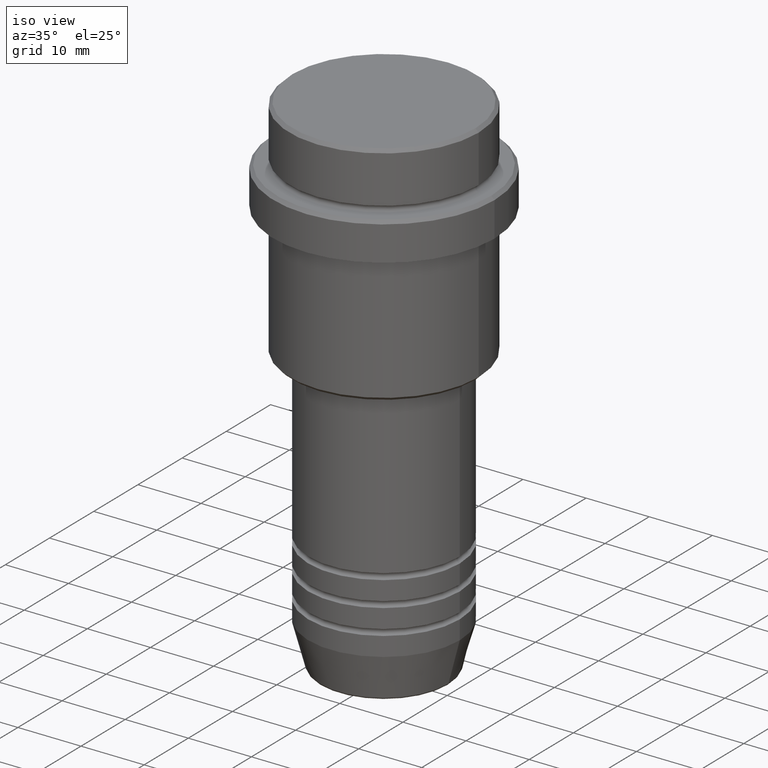
[diagram: clean part render]
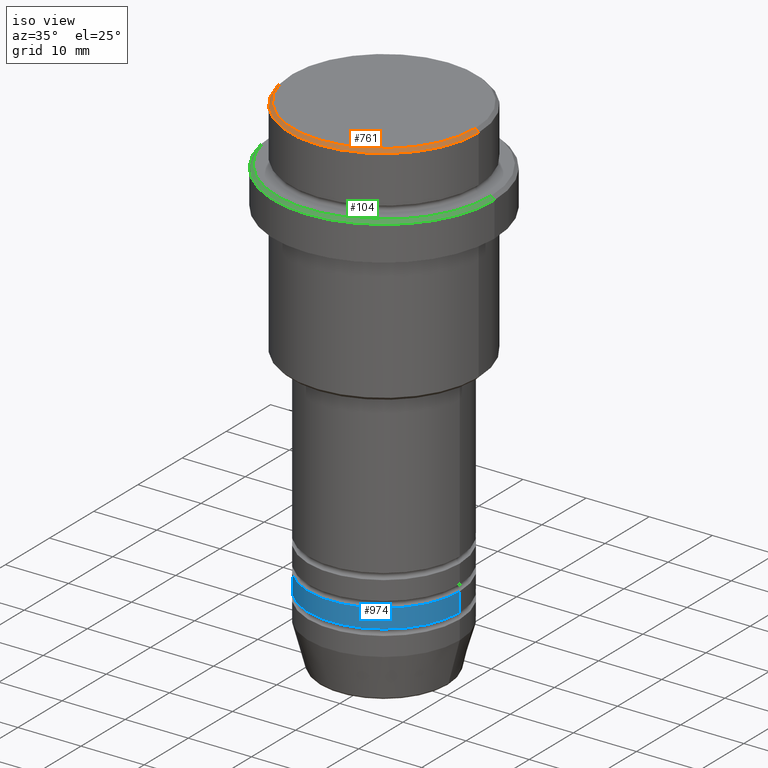
[diagram: same view with three faces highlighted in distinct colors, each labeled with its STEP entity id]
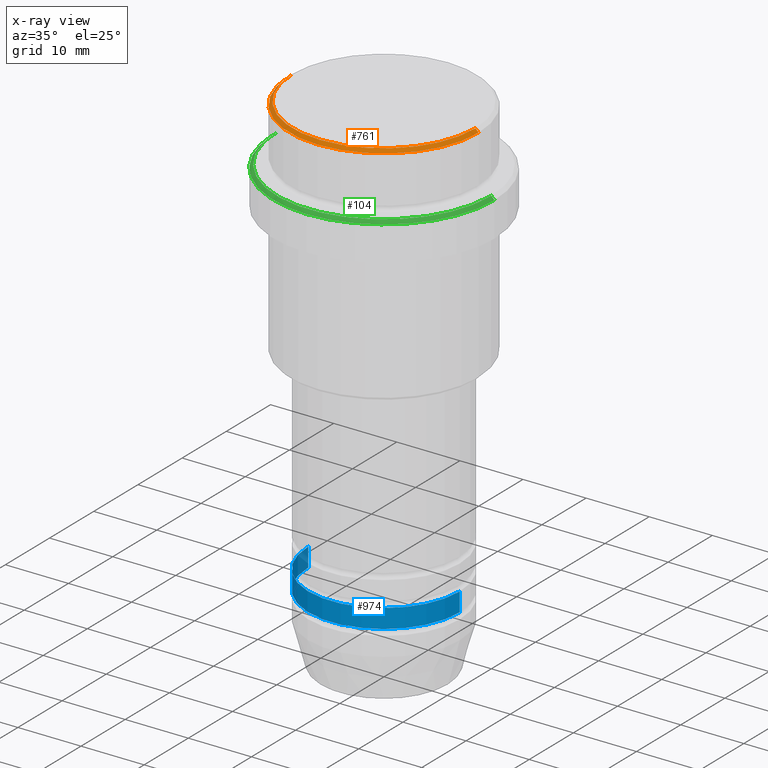
[diagram: x-ray of the same camera — body ghosted, the three highlighted faces saturated]
A machine part, iso view with three faces highlighted in distinct colors.
The next image is the same camera in x-ray (body ghosted, the three faces saturated) — at least one of them is partly hidden behind the body in this view.
Their STEP definitions:

[orange] entity #761 — the highlighted conical surface has half-angle 45 deg.
#8 = ORIENTED_EDGE ( 'NONE', *, *, #1011, .F. ) ;
#11 = LINE ( 'NONE', #1300, #1053 ) ;
#66 = CIRCLE ( 'NONE', #530, 14.50000000000001066 ) ;
#76 = CARTESIAN_POINT ( 'NONE',  ( 0.000000000000000000, 0.000000000000000000, 0.000000000000000000 ) ) ;
#158 = EDGE_CURVE ( 'NONE', #527, #844, #994, .T. ) ;
#171 = CARTESIAN_POINT ( 'NONE',  ( 0.000000000000000000, 0.000000000000000000, -0.4999999999999970024 ) ) ;
#187 = FACE_OUTER_BOUND ( 'NONE', #633, .T. ) ;
#304 = DIRECTION ( 'NONE',  ( 0.000000000000000000, 0.000000000000000000, -1.000000000000000000 ) ) ;
#320 = CIRCLE ( 'NONE', #857, 15.00000000000000000 ) ;
#375 = ORIENTED_EDGE ( 'NONE', *, *, #499, .F. ) ;
#499 = EDGE_CURVE ( 'NONE', #1029, #527, #66, .T. ) ;
#527 = VERTEX_POINT ( 'NONE', #956 ) ;
#530 = AXIS2_PLACEMENT_3D ( 'NONE', #1113, #710, #947 ) ;
#559 = CARTESIAN_POINT ( 'NONE',  ( -15.00000000000000000, 1.836970198721029589E-15, -0.4999999999999970024 ) ) ;
#612 = CARTESIAN_POINT ( 'NONE',  ( -14.50000000000001066, 0.000000000000000000, 0.000000000000000000 ) ) ;
#627 = DIRECTION ( 'NONE',  ( 1.000000000000000000, 0.000000000000000000, 0.000000000000000000 ) ) ;
#633 = EDGE_LOOP ( 'NONE', ( #1043, #375, #921, #8 ) ) ;
#648 = CONICAL_SURFACE ( 'NONE', #1074, 14.50000000000001066, 0.7853981633974396193 ) ;
#650 = VERTEX_POINT ( 'NONE', #559 ) ;
#710 = DIRECTION ( 'NONE',  ( -0.000000000000000000, -0.000000000000000000, 1.000000000000000000 ) ) ;
#761 = ADVANCED_FACE ( 'NONE', ( #187 ), #648, .T. ) ;
#801 = DIRECTION ( 'NONE',  ( 0.7071067811865414665, 8.659560562354857670E-17, -0.7071067811865536790 ) ) ;
#828 = VECTOR ( 'NONE', #801, 1000.000000000000000 ) ;
#844 = VERTEX_POINT ( 'NONE', #1000 ) ;
#857 = AXIS2_PLACEMENT_3D ( 'NONE', #171, #1378, #627 ) ;
#921 = ORIENTED_EDGE ( 'NONE', *, *, #1144, .T. ) ;
#947 = DIRECTION ( 'NONE',  ( 1.000000000000000000, 0.000000000000000000, 0.000000000000000000 ) ) ;
#956 = CARTESIAN_POINT ( 'NONE',  ( 14.50000000000001066, 1.806354028742346591E-15, 0.000000000000000000 ) ) ;
#994 = LINE ( 'NONE', #1326, #828 ) ;
#1000 = CARTESIAN_POINT ( 'NONE',  ( 15.00000000000000000, 0.000000000000000000, -0.4999999999999970024 ) ) ;
#1011 = EDGE_CURVE ( 'NONE', #844, #650, #320, .T. ) ;
#1029 = VERTEX_POINT ( 'NONE', #612 ) ;
#1043 = ORIENTED_EDGE ( 'NONE', *, *, #158, .F. ) ;
#1053 = VECTOR ( 'NONE', #1320, 1000.000000000000000 ) ;
#1074 = AXIS2_PLACEMENT_3D ( 'NONE', #76, #304, #1179 ) ;
#1113 = CARTESIAN_POINT ( 'NONE',  ( 0.000000000000000000, 0.000000000000000000, 0.000000000000000000 ) ) ;
#1144 = EDGE_CURVE ( 'NONE', #1029, #650, #11, .T. ) ;
#1179 = DIRECTION ( 'NONE',  ( -1.000000000000000000, 0.000000000000000000, 0.000000000000000000 ) ) ;
#1300 = CARTESIAN_POINT ( 'NONE',  ( -14.50000000000001066, 0.000000000000000000, 0.000000000000000000 ) ) ;
#1320 = DIRECTION ( 'NONE',  ( -0.7071067811865414665, 0.000000000000000000, -0.7071067811865536790 ) ) ;
#1326 = CARTESIAN_POINT ( 'NONE',  ( 14.50000000000001066, 1.775737858763663593E-15, 0.000000000000000000 ) ) ;
#1378 = DIRECTION ( 'NONE',  ( 0.000000000000000000, 0.000000000000000000, -1.000000000000000000 ) ) ;

[blue] entity #974 — the highlighted cylindrical surface (partial cylindrical patch) has radius 12 mm, axis along (-0, -0, 1).
#34 = CARTESIAN_POINT ( 'NONE',  ( 0.000000000000000000, 0.000000000000000000, -66.99999999999988631 ) ) ;
#54 = EDGE_CURVE ( 'NONE', #1007, #314, #1155, .T. ) ;
#84 = CIRCLE ( 'NONE', #979, 12.00000000000000000 ) ;
#86 = AXIS2_PLACEMENT_3D ( 'NONE', #1263, #178, #1157 ) ;
#137 = LINE ( 'NONE', #991, #176 ) ;
#176 = VECTOR ( 'NONE', #223, 1000.000000000000000 ) ;
#178 = DIRECTION ( 'NONE',  ( -0.000000000000000000, -0.000000000000000000, 1.000000000000000000 ) ) ;
#220 = CARTESIAN_POINT ( 'NONE',  ( -12.00000000000000000, 1.469576158976823947E-15, -69.99999999999988631 ) ) ;
#223 = DIRECTION ( 'NONE',  ( -0.000000000000000000, -0.000000000000000000, 1.000000000000000000 ) ) ;
#267 = EDGE_CURVE ( 'NONE', #569, #416, #137, .T. ) ;
#277 = FACE_OUTER_BOUND ( 'NONE', #843, .T. ) ;
#278 = AXIS2_PLACEMENT_3D ( 'NONE', #1169, #641, #840 ) ;
#314 = VERTEX_POINT ( 'NONE', #1372 ) ;
#416 = VERTEX_POINT ( 'NONE', #1243 ) ;
#448 = EDGE_CURVE ( 'NONE', #416, #314, #84, .T. ) ;
#466 = DIRECTION ( 'NONE',  ( 1.000000000000000000, 0.000000000000000000, 0.000000000000000000 ) ) ;
#569 = VERTEX_POINT ( 'NONE', #220 ) ;
#635 = CYLINDRICAL_SURFACE ( 'NONE', #86, 12.00000000000000000 ) ;
#641 = DIRECTION ( 'NONE',  ( -0.000000000000000000, -0.000000000000000000, 1.000000000000000000 ) ) ;
#644 = ORIENTED_EDGE ( 'NONE', *, *, #267, .F. ) ;
#677 = DIRECTION ( 'NONE',  ( -0.000000000000000000, -0.000000000000000000, 1.000000000000000000 ) ) ;
#840 = DIRECTION ( 'NONE',  ( 1.000000000000000000, 0.000000000000000000, 0.000000000000000000 ) ) ;
#843 = EDGE_LOOP ( 'NONE', ( #644, #1031, #1217, #1052 ) ) ;
#846 = CARTESIAN_POINT ( 'NONE',  ( 12.00000000000000000, 0.000000000000000000, 0.000000000000000000 ) ) ;
#945 = CARTESIAN_POINT ( 'NONE',  ( 12.00000000000000000, 0.000000000000000000, -69.99999999999988631 ) ) ;
#974 = ADVANCED_FACE ( 'NONE', ( #277 ), #635, .T. ) ;
#979 = AXIS2_PLACEMENT_3D ( 'NONE', #34, #677, #466 ) ;
#991 = CARTESIAN_POINT ( 'NONE',  ( -12.00000000000000000, 1.469576158976823947E-15, 0.000000000000000000 ) ) ;
#1001 = CIRCLE ( 'NONE', #278, 12.00000000000000000 ) ;
#1007 = VERTEX_POINT ( 'NONE', #945 ) ;
#1031 = ORIENTED_EDGE ( 'NONE', *, *, #1039, .T. ) ;
#1039 = EDGE_CURVE ( 'NONE', #569, #1007, #1001, .T. ) ;
#1052 = ORIENTED_EDGE ( 'NONE', *, *, #448, .F. ) ;
#1086 = VECTOR ( 'NONE', #1275, 1000.000000000000000 ) ;
#1155 = LINE ( 'NONE', #846, #1086 ) ;
#1157 = DIRECTION ( 'NONE',  ( 1.000000000000000000, 0.000000000000000000, 0.000000000000000000 ) ) ;
#1169 = CARTESIAN_POINT ( 'NONE',  ( 0.000000000000000000, 0.000000000000000000, -69.99999999999988631 ) ) ;
#1217 = ORIENTED_EDGE ( 'NONE', *, *, #54, .T. ) ;
#1243 = CARTESIAN_POINT ( 'NONE',  ( -12.00000000000000000, 1.469576158976823947E-15, -66.99999999999988631 ) ) ;
#1263 = CARTESIAN_POINT ( 'NONE',  ( 0.000000000000000000, 0.000000000000000000, 0.000000000000000000 ) ) ;
#1275 = DIRECTION ( 'NONE',  ( -0.000000000000000000, -0.000000000000000000, 1.000000000000000000 ) ) ;
#1372 = CARTESIAN_POINT ( 'NONE',  ( 12.00000000000000000, 0.000000000000000000, -66.99999999999988631 ) ) ;

[green] entity #104 — the highlighted conical surface has half-angle 45 deg.
#20 = CIRCLE ( 'NONE', #44, 17.50000000000000000 ) ;
#41 = DIRECTION ( 'NONE',  ( -1.000000000000000000, 0.000000000000000000, 0.000000000000000000 ) ) ;
#44 = AXIS2_PLACEMENT_3D ( 'NONE', #1354, #709, #355 ) ;
#67 = EDGE_CURVE ( 'NONE', #370, #547, #83, .T. ) ;
#83 = CIRCLE ( 'NONE', #201, 17.00000000000001421 ) ;
#104 = ADVANCED_FACE ( 'NONE', ( #126 ), #474, .T. ) ;
#108 = ORIENTED_EDGE ( 'NONE', *, *, #67, .F. ) ;
#113 = EDGE_CURVE ( 'NONE', #370, #1417, #992, .T. ) ;
#126 = FACE_OUTER_BOUND ( 'NONE', #1064, .T. ) ;
#201 = AXIS2_PLACEMENT_3D ( 'NONE', #1268, #524, #833 ) ;
#284 = EDGE_CURVE ( 'NONE', #547, #294, #1213, .T. ) ;
#294 = VERTEX_POINT ( 'NONE', #347 ) ;
#316 = VECTOR ( 'NONE', #911, 1000.000000000000000 ) ;
#322 = ORIENTED_EDGE ( 'NONE', *, *, #429, .F. ) ;
#347 = CARTESIAN_POINT ( 'NONE',  ( 17.50000000000000000, 0.000000000000000000, -9.500000000000000000 ) ) ;
#355 = DIRECTION ( 'NONE',  ( 1.000000000000000000, 0.000000000000000000, 0.000000000000000000 ) ) ;
#362 = ORIENTED_EDGE ( 'NONE', *, *, #113, .T. ) ;
#370 = VERTEX_POINT ( 'NONE', #382 ) ;
#382 = CARTESIAN_POINT ( 'NONE',  ( -17.00000000000001421, 0.000000000000000000, -9.000000000000000000 ) ) ;
#429 = EDGE_CURVE ( 'NONE', #294, #1417, #20, .T. ) ;
#465 = DIRECTION ( 'NONE',  ( 0.7071067811865378028, 8.659560562354814529E-17, -0.7071067811865573427 ) ) ;
#474 = CONICAL_SURFACE ( 'NONE', #1324, 17.00000000000001421, 0.7853981633974346233 ) ;
#475 = CARTESIAN_POINT ( 'NONE',  ( -17.00000000000001421, 0.000000000000000000, -9.000000000000000000 ) ) ;
#524 = DIRECTION ( 'NONE',  ( -0.000000000000000000, -0.000000000000000000, 1.000000000000000000 ) ) ;
#547 = VERTEX_POINT ( 'NONE', #867 ) ;
#578 = DIRECTION ( 'NONE',  ( 0.000000000000000000, 0.000000000000000000, -1.000000000000000000 ) ) ;
#646 = VECTOR ( 'NONE', #465, 1000.000000000000000 ) ;
#709 = DIRECTION ( 'NONE',  ( 0.000000000000000000, 0.000000000000000000, -1.000000000000000000 ) ) ;
#833 = DIRECTION ( 'NONE',  ( 1.000000000000000000, 0.000000000000000000, 0.000000000000000000 ) ) ;
#867 = CARTESIAN_POINT ( 'NONE',  ( 17.00000000000001421, 2.112515728529185250E-15, -9.000000000000000000 ) ) ;
#911 = DIRECTION ( 'NONE',  ( -0.7071067811865378028, 0.000000000000000000, -0.7071067811865573427 ) ) ;
#926 = CARTESIAN_POINT ( 'NONE',  ( -17.50000000000000000, 2.143131898507868248E-15, -9.500000000000000000 ) ) ;
#992 = LINE ( 'NONE', #475, #316 ) ;
#1064 = EDGE_LOOP ( 'NONE', ( #1411, #108, #362, #322 ) ) ;
#1097 = CARTESIAN_POINT ( 'NONE',  ( 17.00000000000001421, 2.081899558550502252E-15, -9.000000000000000000 ) ) ;
#1200 = CARTESIAN_POINT ( 'NONE',  ( 0.000000000000000000, 0.000000000000000000, -9.000000000000000000 ) ) ;
#1213 = LINE ( 'NONE', #1097, #646 ) ;
#1268 = CARTESIAN_POINT ( 'NONE',  ( 0.000000000000000000, 0.000000000000000000, -9.000000000000000000 ) ) ;
#1324 = AXIS2_PLACEMENT_3D ( 'NONE', #1200, #578, #41 ) ;
#1354 = CARTESIAN_POINT ( 'NONE',  ( 0.000000000000000000, 0.000000000000000000, -9.500000000000000000 ) ) ;
#1411 = ORIENTED_EDGE ( 'NONE', *, *, #284, .F. ) ;
#1417 = VERTEX_POINT ( 'NONE', #926 ) ;